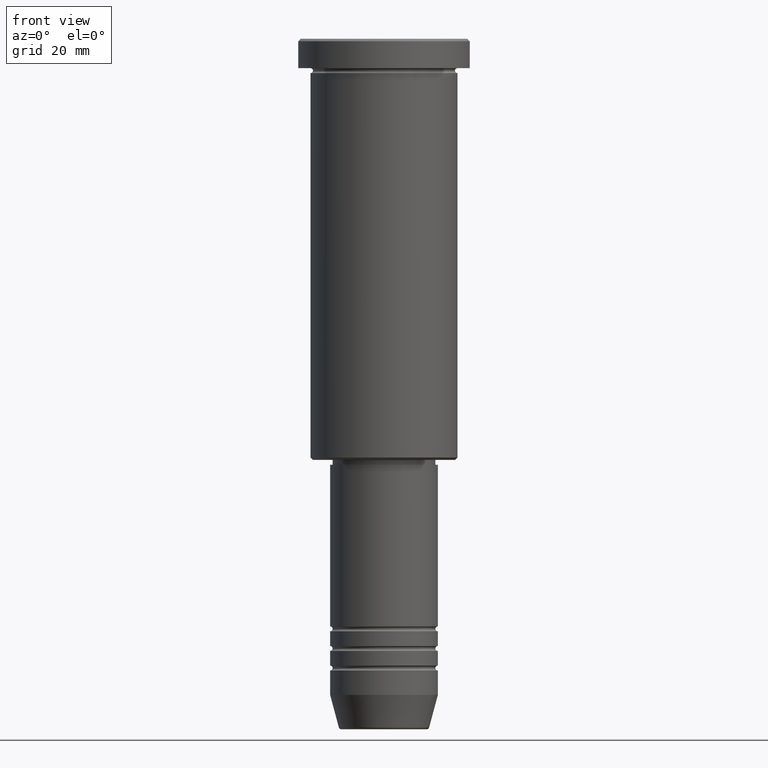
[diagram: clean part render]
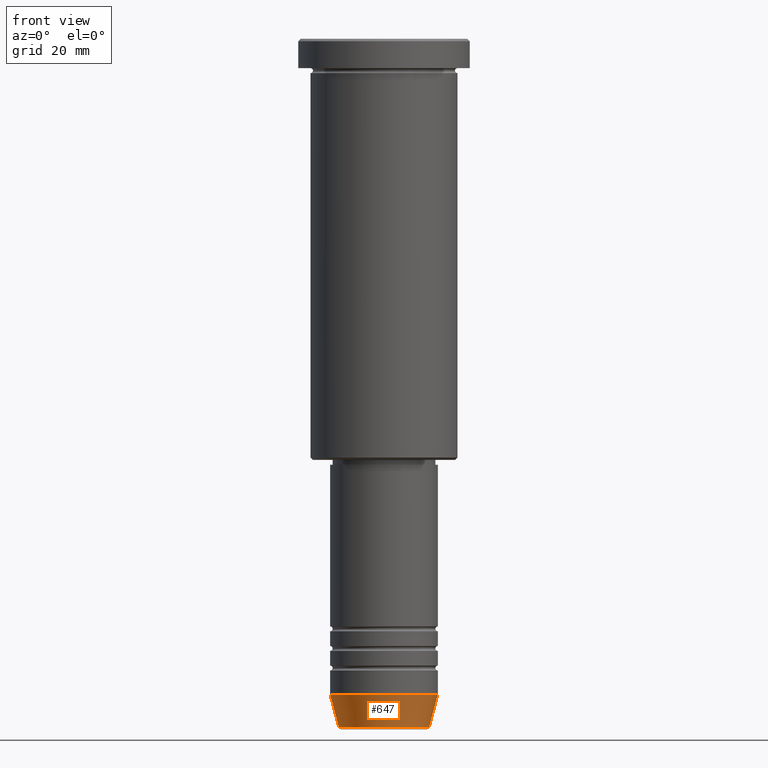
[diagram: same view with one face highlighted and labeled with its STEP entity id]
A machine part, front view. The second image highlights one B-rep face of the part: STEP entity #647.
In plain terms, the highlighted conical surface has half-angle 15 deg.
Its self-contained STEP definition (entity closure, byte-faithful):
#4 = CARTESIAN_POINT ( 'NONE',  ( 0.000000000000000000, 0.000000000000000000, -134.0000000000000000 ) ) ;
#12 = DIRECTION ( 'NONE',  ( -0.000000000000000000, -0.000000000000000000, 1.000000000000000000 ) ) ;
#20 = ORIENTED_EDGE ( 'NONE', *, *, #1003, .F. ) ;
#50 = DIRECTION ( 'NONE',  ( 1.000000000000000000, 0.000000000000000000, 0.000000000000000000 ) ) ;
#67 = CARTESIAN_POINT ( 'NONE',  ( -11.00000000000000000, 1.347111479062088405E-15, -134.0000000000000000 ) ) ;
#96 = VECTOR ( 'NONE', #932, 1000.000000000000000 ) ;
#166 = EDGE_LOOP ( 'NONE', ( #309, #1130, #999, #20 ) ) ;
#171 = CARTESIAN_POINT ( 'NONE',  ( -9.223655072137189492, 1.238341722557647202E-15, -140.6294095225512706 ) ) ;
#211 = DIRECTION ( 'NONE',  ( -0.000000000000000000, -0.000000000000000000, 1.000000000000000000 ) ) ;
#221 = EDGE_CURVE ( 'NONE', #281, #310, #989, .T. ) ;
#233 = AXIS2_PLACEMENT_3D ( 'NONE', #4, #211, #50 ) ;
#281 = VERTEX_POINT ( 'NONE', #171 ) ;
#304 = DIRECTION ( 'NONE',  ( 0.2588190451025213501, 0.000000000000000000, 0.9659258262890680902 ) ) ;
#309 = ORIENTED_EDGE ( 'NONE', *, *, #342, .F. ) ;
#310 = VERTEX_POINT ( 'NONE', #625 ) ;
#342 = EDGE_CURVE ( 'NONE', #281, #645, #839, .T. ) ;
#349 = CARTESIAN_POINT ( 'NONE',  ( 0.000000000000000000, 0.000000000000000000, -134.0000000000000000 ) ) ;
#485 = VERTEX_POINT ( 'NONE', #1004 ) ;
#604 = EDGE_CURVE ( 'NONE', #310, #485, #768, .T. ) ;
#608 = AXIS2_PLACEMENT_3D ( 'NONE', #349, #12, #762 ) ;
#625 = CARTESIAN_POINT ( 'NONE',  ( 9.223655072137189492, 0.000000000000000000, -140.6294095225512706 ) ) ;
#645 = VERTEX_POINT ( 'NONE', #693 ) ;
#647 = ADVANCED_FACE ( 'NONE', ( #1061 ), #1052, .T. ) ;
#693 = CARTESIAN_POINT ( 'NONE',  ( -11.00000000000000000, 1.347111479062088405E-15, -134.0000000000000000 ) ) ;
#749 = CIRCLE ( 'NONE', #608, 11.00000000000000000 ) ;
#762 = DIRECTION ( 'NONE',  ( 1.000000000000000000, 0.000000000000000000, 0.000000000000000000 ) ) ;
#768 = LINE ( 'NONE', #1129, #786 ) ;
#783 = AXIS2_PLACEMENT_3D ( 'NONE', #793, #801, #899 ) ;
#786 = VECTOR ( 'NONE', #304, 1000.000000000000000 ) ;
#793 = CARTESIAN_POINT ( 'NONE',  ( 0.000000000000000000, 0.000000000000000000, -140.6294095225512706 ) ) ;
#801 = DIRECTION ( 'NONE',  ( -0.000000000000000000, -0.000000000000000000, 1.000000000000000000 ) ) ;
#839 = LINE ( 'NONE', #67, #96 ) ;
#899 = DIRECTION ( 'NONE',  ( 1.000000000000000000, 0.000000000000000000, 0.000000000000000000 ) ) ;
#932 = DIRECTION ( 'NONE',  ( -0.2588190451025213501, 3.169619151431772337E-17, 0.9659258262890680902 ) ) ;
#989 = CIRCLE ( 'NONE', #783, 9.223655072137189492 ) ;
#999 = ORIENTED_EDGE ( 'NONE', *, *, #604, .T. ) ;
#1003 = EDGE_CURVE ( 'NONE', #645, #485, #749, .T. ) ;
#1004 = CARTESIAN_POINT ( 'NONE',  ( 11.00000000000000000, 0.000000000000000000, -134.0000000000000000 ) ) ;
#1052 = CONICAL_SURFACE ( 'NONE', #233, 11.00000000000000000, 0.2617993877991500740 ) ;
#1061 = FACE_OUTER_BOUND ( 'NONE', #166, .T. ) ;
#1129 = CARTESIAN_POINT ( 'NONE',  ( 11.00000000000000000, 0.000000000000000000, -134.0000000000000000 ) ) ;
#1130 = ORIENTED_EDGE ( 'NONE', *, *, #221, .T. ) ;